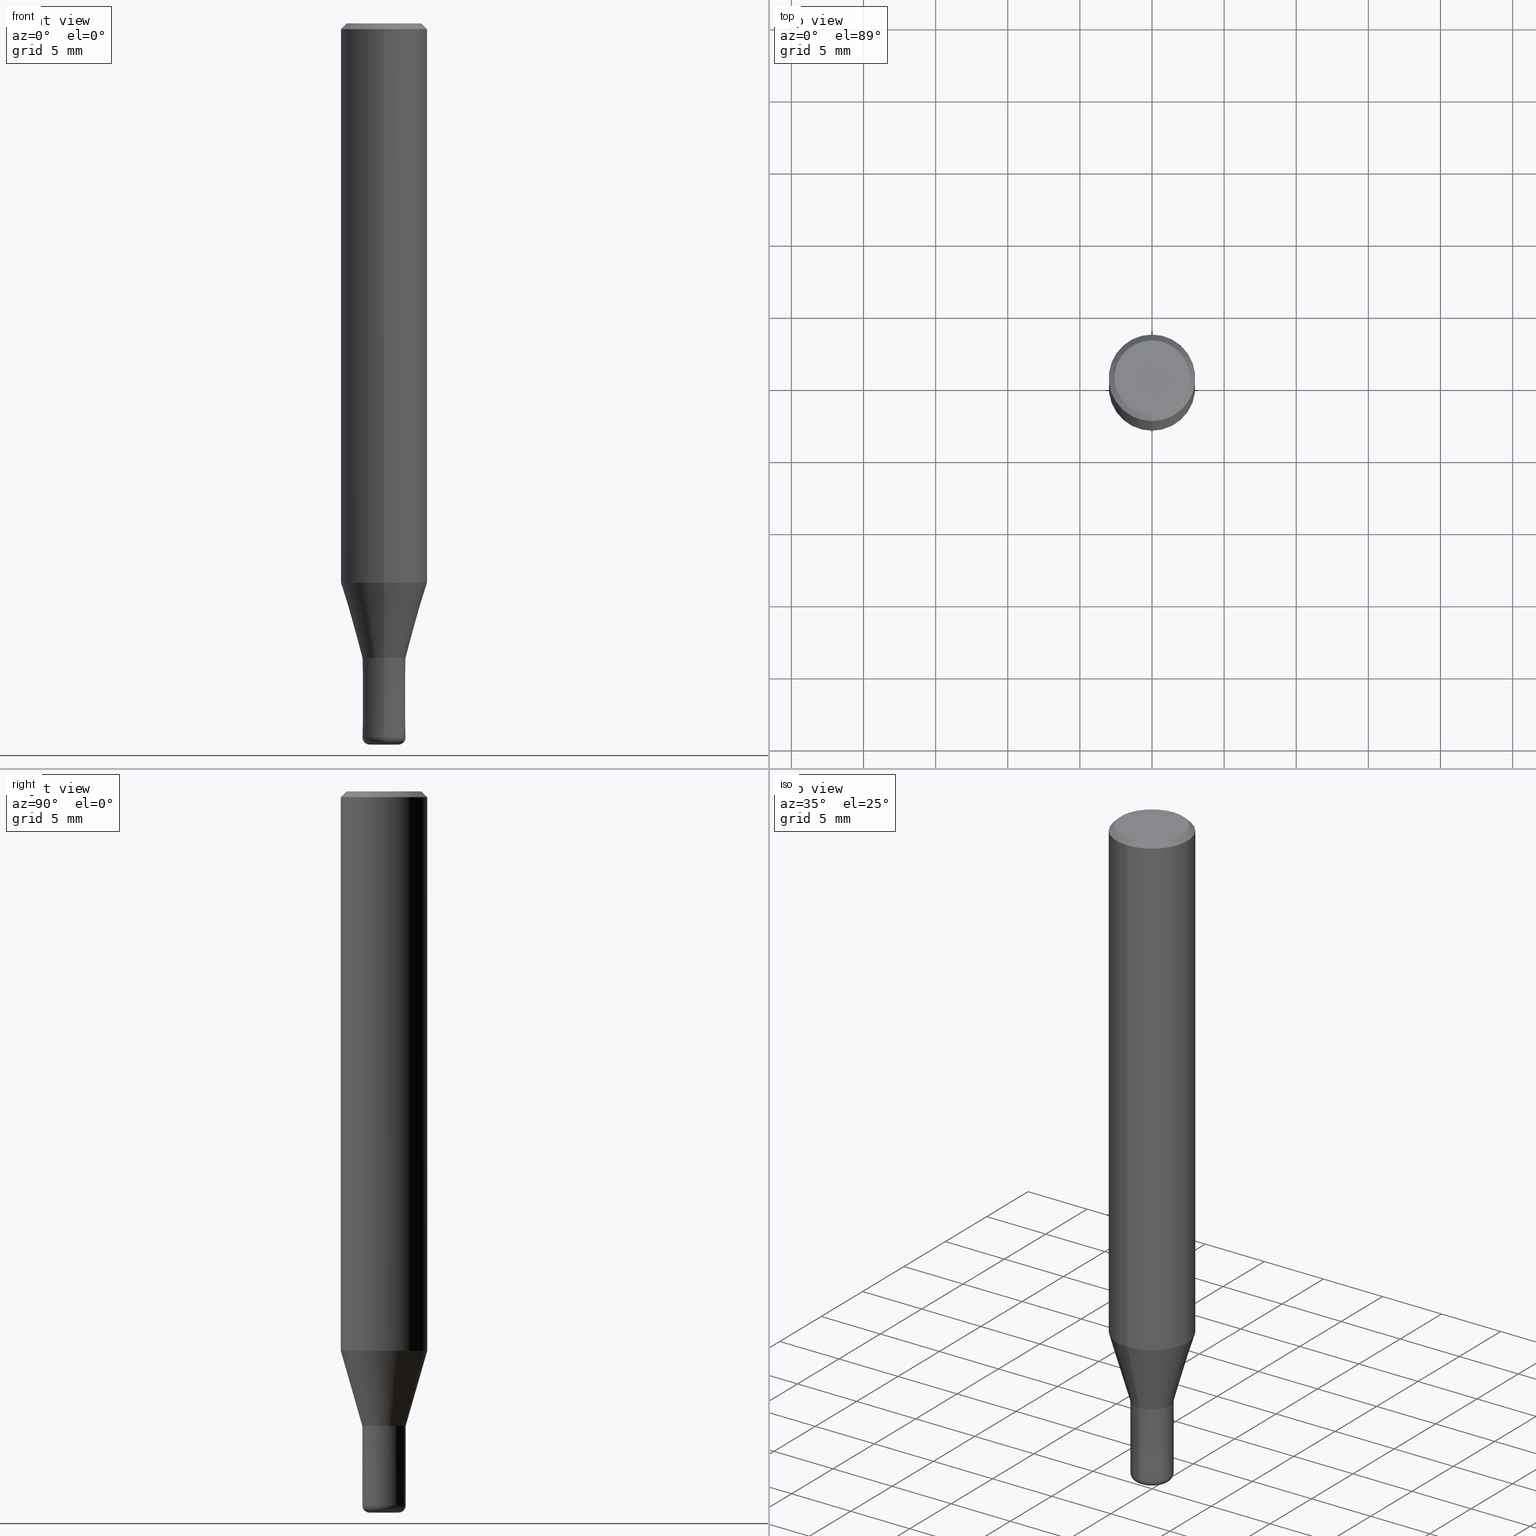
[diagram: canonical four-view strip — front | top / right | iso, engineering-drawing reading convention]
A machine part, canonical four-view strip (front | top / right | iso — engineering-drawing reading convention). The complete STEP part file that produces these views, byte-faithful:
ISO-10303-21;
HEADER;
FILE_DESCRIPTION(('no description'),'unknown implementation level');
FILE_NAME('CXRS5030-05-0600-Huellk.stp','  ',('CIMSOURCE GmbH'),('CADClick - KiM GmbH - www.kimweb.de'),'unknown preprocess','ACIS','unknown authorization');
FILE_SCHEMA(('automotive_design'));
ENDSEC;
DATA;
#1=MECHANICAL_DESIGN_GEOMETRIC_PRESENTATION_REPRESENTATION(' ',(#14,#15,#16,#17,#18,#19,#20,#21,#22,#23,#24,#25,#26,#27,#28,#29,#30,#31,#32,#33,#34,#35,#36,#37,#38,#39,#40,#41,#42,#43,#44,#45,#46,#47,#48,#49,#50,#51,#52,#53,#54,#55,#56,#57,#58,#59,#60,#61,#62,#63,#64,#65,#66,#67,#68,#69,#70,#71,#72,#73,#74,#75,#76,#77,#78,#79,#80,#81,#82,#83,#84,#85,#86,#87,#88,#89,#90,#91,#92,#93,#94,#95,#96,#97),#10);
#2=PRODUCT_DEFINITION_CONTEXT('',#98,'design');
#3=APPLICATION_PROTOCOL_DEFINITION('INTERNATIONAL STANDARD','automotive_design',1994,#98);
#4=PRODUCT_CATEGORY_RELATIONSHIP('NONE','NONE',#99,#100);
#5=SHAPE_DEFINITION_REPRESENTATION(#101,#102);
#6=PRODUCT_DEFINITION_CONTEXT('',#103,'design');
#7=APPLICATION_PROTOCOL_DEFINITION('INTERNATIONAL STANDARD','automotive_design',1994,#103);
#8=PRODUCT_CATEGORY_RELATIONSHIP('NONE','NONE',#104,#105);
#9=SHAPE_DEFINITION_REPRESENTATION(#106,#107);
#10= (GEOMETRIC_REPRESENTATION_CONTEXT(3)GLOBAL_UNCERTAINTY_ASSIGNED_CONTEXT((#110))GLOBAL_UNIT_ASSIGNED_CONTEXT((#112,#113,#114))REPRESENTATION_CONTEXT('NONE','WORKSPACE'));
#14=STYLED_ITEM('',(#116),#117);
#15=STYLED_ITEM('',(#118),#119);
#16=STYLED_ITEM('',(#120),#121);
#17=STYLED_ITEM('',(#122),#123);
#18=STYLED_ITEM('',(#124),#125);
#19=STYLED_ITEM('',(#126),#127);
#20=STYLED_ITEM('',(#128),#129);
#21=STYLED_ITEM('',(#130),#131);
#22=STYLED_ITEM('',(#132),#133);
#23=STYLED_ITEM('',(#134),#135);
#24=STYLED_ITEM('',(#136),#137);
#25=STYLED_ITEM('',(#138),#139);
#26=STYLED_ITEM('',(#140),#141);
#27=STYLED_ITEM('',(#142),#143);
#28=STYLED_ITEM('',(#144),#145);
#29=STYLED_ITEM('',(#146),#147);
#30=STYLED_ITEM('',(#148),#149);
#31=STYLED_ITEM('',(#150),#151);
#32=STYLED_ITEM('',(#152),#153);
#33=STYLED_ITEM('',(#154),#155);
#34=STYLED_ITEM('',(#156),#157);
#35=STYLED_ITEM('',(#158),#159);
#36=STYLED_ITEM('',(#160),#161);
#37=STYLED_ITEM('',(#162),#163);
#38=STYLED_ITEM('',(#164),#165);
#39=STYLED_ITEM('',(#166),#167);
#40=STYLED_ITEM('',(#168),#169);
#41=STYLED_ITEM('',(#170),#171);
#42=STYLED_ITEM('',(#172),#173);
#43=STYLED_ITEM('',(#174),#175);
#44=STYLED_ITEM('',(#176),#177);
#45=STYLED_ITEM('',(#178),#179);
#46=STYLED_ITEM('',(#180),#181);
#47=STYLED_ITEM('',(#182),#183);
#48=STYLED_ITEM('',(#184),#185);
#49=STYLED_ITEM('',(#186),#187);
#50=STYLED_ITEM('',(#188),#189);
#51=STYLED_ITEM('',(#190),#191);
#52=STYLED_ITEM('',(#192),#193);
#53=STYLED_ITEM('',(#194),#195);
#54=STYLED_ITEM('',(#196),#197);
#55=STYLED_ITEM('',(#198),#199);
#56=STYLED_ITEM('',(#200),#201);
#57=STYLED_ITEM('',(#202),#203);
#58=STYLED_ITEM('',(#204),#205);
#59=STYLED_ITEM('',(#206),#207);
#60=STYLED_ITEM('',(#208),#209);
#61=STYLED_ITEM('',(#210),#211);
#62=STYLED_ITEM('',(#212),#213);
#63=STYLED_ITEM('',(#214),#215);
#64=STYLED_ITEM('',(#216),#217);
#65=STYLED_ITEM('',(#218),#219);
#66=STYLED_ITEM('',(#220),#221);
#67=STYLED_ITEM('',(#222),#223);
#68=STYLED_ITEM('',(#224),#225);
#69=STYLED_ITEM('',(#226),#227);
#70=STYLED_ITEM('',(#228),#229);
#71=STYLED_ITEM('',(#230),#231);
#72=STYLED_ITEM('',(#232),#233);
#73=STYLED_ITEM('',(#234),#235);
#74=STYLED_ITEM('',(#236),#237);
#75=STYLED_ITEM('',(#238),#239);
#76=STYLED_ITEM('',(#240),#241);
#77=STYLED_ITEM('',(#242),#243);
#78=STYLED_ITEM('',(#244),#245);
#79=STYLED_ITEM('',(#246),#247);
#80=STYLED_ITEM('',(#248),#249);
#81=STYLED_ITEM('',(#250),#251);
#82=STYLED_ITEM('',(#252),#253);
#83=STYLED_ITEM('',(#254),#255);
#84=STYLED_ITEM('',(#256),#257);
#85=STYLED_ITEM('',(#258),#259);
#86=STYLED_ITEM('',(#260),#261);
#87=STYLED_ITEM('',(#262),#263);
#88=STYLED_ITEM('',(#264),#265);
#89=STYLED_ITEM('',(#266),#267);
#90=STYLED_ITEM('',(#268),#269);
#91=STYLED_ITEM('',(#270),#271);
#92=STYLED_ITEM('',(#272),#273);
#93=STYLED_ITEM('',(#274),#275);
#94=STYLED_ITEM('',(#276),#277);
#95=STYLED_ITEM('',(#278),#279);
#96=STYLED_ITEM('',(#280),#281);
#97=STYLED_ITEM('',(#282),#283);
#98=APPLICATION_CONTEXT(' ');
#99=PRODUCT_CATEGORY('part','NONE');
#100=PRODUCT_RELATED_PRODUCT_CATEGORY('detail',' ',(#284));
#101=PRODUCT_DEFINITION_SHAPE('NONE','NONE',#285);
#102=ADVANCED_BREP_SHAPE_REPRESENTATION('1',(#229,#286),#10);
#103=APPLICATION_CONTEXT(' ');
#104=PRODUCT_CATEGORY('part','NONE');
#105=PRODUCT_RELATED_PRODUCT_CATEGORY('detail',' ',(#287));
#106=PRODUCT_DEFINITION_SHAPE('NONE','NONE',#288);
#107=ADVANCED_BREP_SHAPE_REPRESENTATION('2',(#219,#289),#10);
#110=UNCERTAINTY_MEASURE_WITH_UNIT(LENGTH_MEASURE(1.0E-006),#112,'','');
#112= (CONVERSION_BASED_UNIT('MILLIMETRE',#292)LENGTH_UNIT()NAMED_UNIT(#295));
#113= (NAMED_UNIT(#297)PLANE_ANGLE_UNIT()SI_UNIT($,.RADIAN.));
#114= (NAMED_UNIT(#297)SOLID_ANGLE_UNIT()SI_UNIT($,.STERADIAN.));
#116=PRESENTATION_STYLE_ASSIGNMENT((#303));
#117=EDGE_CURVE('',#217,#245,#304,.T.);
#118=PRESENTATION_STYLE_ASSIGNMENT((#305));
#119=ADVANCED_FACE('',(#306),#307,.T.);
#120=PRESENTATION_STYLE_ASSIGNMENT((#308));
#121=EDGE_CURVE('',#281,#275,#309,.T.);
#122=PRESENTATION_STYLE_ASSIGNMENT((#310));
#123=VERTEX_POINT('',#311);
#124=PRESENTATION_STYLE_ASSIGNMENT((#312));
#125=ADVANCED_FACE('',(#313),#314,.T.);
#126=PRESENTATION_STYLE_ASSIGNMENT((#315));
#127=ADVANCED_FACE('',(#316),#317,.T.);
#128=PRESENTATION_STYLE_ASSIGNMENT((#318));
#129=VERTEX_POINT('',#319);
#130=PRESENTATION_STYLE_ASSIGNMENT((#320));
#131=EDGE_CURVE('',#165,#123,#321,.T.);
#132=PRESENTATION_STYLE_ASSIGNMENT((#322));
#133=EDGE_CURVE('',#123,#165,#323,.T.);
#134=PRESENTATION_STYLE_ASSIGNMENT((#324));
#135=ADVANCED_FACE('',(#325,#326),#327,.T.);
#136=PRESENTATION_STYLE_ASSIGNMENT((#328));
#137=EDGE_CURVE('',#243,#215,#329,.T.);
#138=PRESENTATION_STYLE_ASSIGNMENT((#330));
#139=EDGE_CURVE('',#195,#203,#331,.T.);
#140=PRESENTATION_STYLE_ASSIGNMENT((#332));
#141=EDGE_CURVE('',#275,#281,#333,.T.);
#142=PRESENTATION_STYLE_ASSIGNMENT((#334));
#143=EDGE_CURVE('',#213,#221,#335,.T.);
#144=PRESENTATION_STYLE_ASSIGNMENT((#336));
#145=EDGE_CURVE('',#195,#215,#337,.T.);
#146=PRESENTATION_STYLE_ASSIGNMENT((#338));
#147=EDGE_CURVE('',#197,#151,#339,.T.);
#148=PRESENTATION_STYLE_ASSIGNMENT((#340));
#149=ADVANCED_FACE('',(#341),#342,.T.);
#150=PRESENTATION_STYLE_ASSIGNMENT((#343));
#151=VERTEX_POINT('',#344);
#152=PRESENTATION_STYLE_ASSIGNMENT((#345));
#153=EDGE_CURVE('',#173,#209,#346,.T.);
#154=PRESENTATION_STYLE_ASSIGNMENT((#347));
#155=EDGE_CURVE('',#245,#217,#348,.T.);
#156=PRESENTATION_STYLE_ASSIGNMENT((#349));
#157=EDGE_CURVE('',#191,#187,#350,.T.);
#158=PRESENTATION_STYLE_ASSIGNMENT((#351));
#159=EDGE_CURVE('',#269,#129,#352,.T.);
#160=PRESENTATION_STYLE_ASSIGNMENT((#353));
#161=ADVANCED_FACE('',(#354),#355,.T.);
#162=PRESENTATION_STYLE_ASSIGNMENT((#356));
#163=ADVANCED_FACE('',(#357),#358,.T.);
#164=PRESENTATION_STYLE_ASSIGNMENT((#359));
#165=VERTEX_POINT('',#360);
#166=PRESENTATION_STYLE_ASSIGNMENT((#361));
#167=EDGE_CURVE('',#151,#123,#362,.T.);
#168=PRESENTATION_STYLE_ASSIGNMENT((#363));
#169=ADVANCED_FACE('',(#364),#365,.T.);
#170=PRESENTATION_STYLE_ASSIGNMENT((#366));
#171=VERTEX_POINT('',#367);
#172=PRESENTATION_STYLE_ASSIGNMENT((#368));
#173=VERTEX_POINT('',#369);
#174=PRESENTATION_STYLE_ASSIGNMENT((#370));
#175=EDGE_CURVE('',#255,#173,#371,.T.);
#176=PRESENTATION_STYLE_ASSIGNMENT((#372));
#177=EDGE_CURVE('',#221,#185,#373,.T.);
#178=PRESENTATION_STYLE_ASSIGNMENT((#374));
#179=EDGE_CURVE('',#245,#275,#375,.T.);
#180=PRESENTATION_STYLE_ASSIGNMENT((#376));
#181=ADVANCED_FACE('',(#377),#378,.T.);
#182=PRESENTATION_STYLE_ASSIGNMENT((#379));
#183=ADVANCED_FACE('',(#380),#381,.T.);
#184=PRESENTATION_STYLE_ASSIGNMENT((#382));
#185=VERTEX_POINT('',#383);
#186=PRESENTATION_STYLE_ASSIGNMENT((#384));
#187=VERTEX_POINT('',#385);
#188=PRESENTATION_STYLE_ASSIGNMENT((#386));
#189=ADVANCED_FACE('',(#387,#388),#389,.T.);
#190=PRESENTATION_STYLE_ASSIGNMENT((#390));
#191=VERTEX_POINT('',#391);
#192=PRESENTATION_STYLE_ASSIGNMENT((#392));
#193=ADVANCED_FACE('',(#393),#394,.F.);
#194=PRESENTATION_STYLE_ASSIGNMENT((#395));
#195=VERTEX_POINT('',#396);
#196=PRESENTATION_STYLE_ASSIGNMENT((#397));
#197=VERTEX_POINT('',#398);
#198=PRESENTATION_STYLE_ASSIGNMENT((#399));
#199=ADVANCED_FACE('',(#400,#401),#402,.T.);
#200=PRESENTATION_STYLE_ASSIGNMENT((#403));
#201=EDGE_CURVE('',#185,#171,#404,.T.);
#202=PRESENTATION_STYLE_ASSIGNMENT((#405));
#203=VERTEX_POINT('',#406);
#204=PRESENTATION_STYLE_ASSIGNMENT((#407));
#205=EDGE_CURVE('',#151,#197,#408,.T.);
#206=PRESENTATION_STYLE_ASSIGNMENT((#409));
#207=ADVANCED_FACE('',(#410),#411,.T.);
#208=PRESENTATION_STYLE_ASSIGNMENT((#412));
#209=VERTEX_POINT('',#413);
#210=PRESENTATION_STYLE_ASSIGNMENT((#414));
#211=VERTEX_POINT('',#415);
#212=PRESENTATION_STYLE_ASSIGNMENT((#416));
#213=VERTEX_POINT('',#417);
#214=PRESENTATION_STYLE_ASSIGNMENT((#418));
#215=VERTEX_POINT('',#419);
#216=PRESENTATION_STYLE_ASSIGNMENT((#420));
#217=VERTEX_POINT('',#421);
#218=PRESENTATION_STYLE_ASSIGNMENT((#422));
#219=MANIFOLD_SOLID_BREP('2',#423);
#220=PRESENTATION_STYLE_ASSIGNMENT((#424));
#221=VERTEX_POINT('',#425);
#222=PRESENTATION_STYLE_ASSIGNMENT((#426));
#223=EDGE_CURVE('',#281,#217,#427,.T.);
#224=PRESENTATION_STYLE_ASSIGNMENT((#428));
#225=EDGE_CURVE('',#221,#213,#429,.T.);
#226=PRESENTATION_STYLE_ASSIGNMENT((#430));
#227=EDGE_CURVE('',#209,#211,#431,.T.);
#228=PRESENTATION_STYLE_ASSIGNMENT((#432));
#229=MANIFOLD_SOLID_BREP('1',#433);
#230=PRESENTATION_STYLE_ASSIGNMENT((#434));
#231=EDGE_CURVE('',#211,#255,#435,.T.);
#232=PRESENTATION_STYLE_ASSIGNMENT((#436));
#233=ADVANCED_FACE('',(#437),#438,.T.);
#234=PRESENTATION_STYLE_ASSIGNMENT((#439));
#235=ADVANCED_FACE('',(#440),#441,.F.);
#236=PRESENTATION_STYLE_ASSIGNMENT((#442));
#237=ADVANCED_FACE('',(#443),#444,.T.);
#238=PRESENTATION_STYLE_ASSIGNMENT((#445));
#239=ADVANCED_FACE('',(#446,#447),#448,.T.);
#240=PRESENTATION_STYLE_ASSIGNMENT((#449));
#241=ADVANCED_FACE('',(#450),#451,.T.);
#242=PRESENTATION_STYLE_ASSIGNMENT((#452));
#243=VERTEX_POINT('',#453);
#244=PRESENTATION_STYLE_ASSIGNMENT((#454));
#245=VERTEX_POINT('',#455);
#246=PRESENTATION_STYLE_ASSIGNMENT((#456));
#247=EDGE_CURVE('',#129,#269,#457,.T.);
#248=PRESENTATION_STYLE_ASSIGNMENT((#458));
#249=ADVANCED_FACE('',(#459),#460,.T.);
#250=PRESENTATION_STYLE_ASSIGNMENT((#461));
#251=EDGE_CURVE('',#215,#243,#462,.T.);
#252=PRESENTATION_STYLE_ASSIGNMENT((#463));
#253=EDGE_CURVE('',#191,#171,#464,.T.);
#254=PRESENTATION_STYLE_ASSIGNMENT((#465));
#255=VERTEX_POINT('',#466);
#256=PRESENTATION_STYLE_ASSIGNMENT((#467));
#257=EDGE_CURVE('',#171,#213,#468,.T.);
#258=PRESENTATION_STYLE_ASSIGNMENT((#469));
#259=EDGE_CURVE('',#211,#209,#470,.T.);
#260=PRESENTATION_STYLE_ASSIGNMENT((#471));
#261=EDGE_CURVE('',#203,#195,#472,.T.);
#262=PRESENTATION_STYLE_ASSIGNMENT((#473));
#263=EDGE_CURVE('',#129,#123,#474,.T.);
#264=PRESENTATION_STYLE_ASSIGNMENT((#475));
#265=EDGE_CURVE('',#243,#203,#476,.T.);
#266=PRESENTATION_STYLE_ASSIGNMENT((#477));
#267=EDGE_CURVE('',#173,#255,#478,.T.);
#268=PRESENTATION_STYLE_ASSIGNMENT((#479));
#269=VERTEX_POINT('',#480);
#270=PRESENTATION_STYLE_ASSIGNMENT((#481));
#271=EDGE_CURVE('',#165,#197,#482,.T.);
#272=PRESENTATION_STYLE_ASSIGNMENT((#483));
#273=EDGE_CURVE('',#171,#185,#484,.T.);
#274=PRESENTATION_STYLE_ASSIGNMENT((#485));
#275=VERTEX_POINT('',#486);
#276=PRESENTATION_STYLE_ASSIGNMENT((#487));
#277=EDGE_CURVE('',#185,#187,#488,.T.);
#278=PRESENTATION_STYLE_ASSIGNMENT((#489));
#279=EDGE_CURVE('',#187,#191,#490,.T.);
#280=PRESENTATION_STYLE_ASSIGNMENT((#491));
#281=VERTEX_POINT('',#492);
#282=PRESENTATION_STYLE_ASSIGNMENT((#493));
#283=EDGE_CURVE('',#165,#269,#494,.T.);
#284=PRODUCT('1','1','PART-1-DESC',(#495));
#285=PRODUCT_DEFINITION('NONE','NONE',#496,#2);
#286=AXIS2_PLACEMENT_3D('',#497,#498,#499);
#287=PRODUCT('2','2','PART-2-DESC',(#500));
#288=PRODUCT_DEFINITION('NONE','NONE',#501,#6);
#289=AXIS2_PLACEMENT_3D('',#502,#503,#504);
#292=LENGTH_MEASURE_WITH_UNIT(LENGTH_MEASURE(1.0),#505);
#295=DIMENSIONAL_EXPONENTS(1.0,0.0,0.0,0.0,0.0,0.0,0.0);
#297=DIMENSIONAL_EXPONENTS(0.0,0.0,0.0,0.0,0.0,0.0,0.0);
#303=CURVE_STYLE('',#506,POSITIVE_LENGTH_MEASURE(1.0E-006),#507);
#304=CIRCLE('',#508,2.99995);
#305=SURFACE_STYLE_USAGE(.BOTH.,#509);
#306=FACE_OUTER_BOUND('',#510,.T.);
#307=CYLINDRICAL_SURFACE('',#511,3.0);
#308=CURVE_STYLE('',#512,POSITIVE_LENGTH_MEASURE(1.0E-006),#513);
#309=CIRCLE('',#514,1.49995);
#310=POINT_STYLE(' ',#515,POSITIVE_LENGTH_MEASURE(1.0E-006),#516);
#311=CARTESIAN_POINT('',(0.0,1.5,-49.5));
#312=SURFACE_STYLE_USAGE(.BOTH.,#517);
#313=FACE_OUTER_BOUND('',#518,.T.);
#314=CONICAL_SURFACE('',#519,2.8,0.78539816339745);
#315=SURFACE_STYLE_USAGE(.BOTH.,#520);
#316=FACE_OUTER_BOUND('',#521,.T.);
#317=PLANE('',#522);
#318=POINT_STYLE(' ',#523,POSITIVE_LENGTH_MEASURE(1.0E-006),#524);
#319=CARTESIAN_POINT('',(0.0,1.0,-50.0));
#320=CURVE_STYLE('',#525,POSITIVE_LENGTH_MEASURE(1.0E-006),#526);
#321=CIRCLE('',#527,1.5);
#322=CURVE_STYLE('',#528,POSITIVE_LENGTH_MEASURE(1.0E-006),#529);
#323=CIRCLE('',#530,1.5);
#324=SURFACE_STYLE_USAGE(.BOTH.,#531);
#325=FACE_OUTER_BOUND('',#532,.T.);
#326=FACE_BOUND('',#533,.T.);
#327=PLANE('',#534);
#328=CURVE_STYLE('',#535,POSITIVE_LENGTH_MEASURE(1.0E-006),#536);
#329=CIRCLE('',#537,0.675);
#330=CURVE_STYLE('',#538,POSITIVE_LENGTH_MEASURE(1.0E-006),#539);
#331=CIRCLE('',#540,0.675);
#332=CURVE_STYLE('',#541,POSITIVE_LENGTH_MEASURE(1.0E-006),#542);
#333=CIRCLE('',#543,1.49995);
#334=CURVE_STYLE('',#544,POSITIVE_LENGTH_MEASURE(1.0E-006),#545);
#335=CIRCLE('',#546,2.6);
#336=CURVE_STYLE('',#547,POSITIVE_LENGTH_MEASURE(1.0E-006),#548);
#337=LINE('',#549,#550);
#338=CURVE_STYLE('',#551,POSITIVE_LENGTH_MEASURE(1.0E-006),#552);
#339=CIRCLE('',#553,1.4999);
#340=SURFACE_STYLE_USAGE(.BOTH.,#554);
#341=FACE_OUTER_BOUND('',#555,.T.);
#342=CYLINDRICAL_SURFACE('',#556,0.675);
#343=POINT_STYLE(' ',#557,POSITIVE_LENGTH_MEASURE(1.0E-006),#558);
#344=CARTESIAN_POINT('',(0.0,1.4999,-44.0));
#345=CURVE_STYLE('',#559,POSITIVE_LENGTH_MEASURE(1.0E-006),#560);
#346=LINE('',#561,#562);
#347=CURVE_STYLE('',#563,POSITIVE_LENGTH_MEASURE(1.0E-006),#564);
#348=CIRCLE('',#565,2.99995);
#349=CURVE_STYLE('',#566,POSITIVE_LENGTH_MEASURE(1.0E-006),#567);
#350=CIRCLE('',#568,3.0);
#351=CURVE_STYLE('',#569,POSITIVE_LENGTH_MEASURE(1.0E-006),#570);
#352=CIRCLE('',#571,1.0);
#353=SURFACE_STYLE_USAGE(.BOTH.,#572);
#354=FACE_OUTER_BOUND('',#573,.T.);
#355=CYLINDRICAL_SURFACE('',#574,3.0);
#356=SURFACE_STYLE_USAGE(.BOTH.,#575);
#357=FACE_OUTER_BOUND('',#576,.T.);
#358=TOROIDAL_SURFACE('',#577,0.999999999999999,0.500000000000001);
#359=POINT_STYLE(' ',#578,POSITIVE_LENGTH_MEASURE(1.0E-006),#579);
#360=CARTESIAN_POINT('',(1.83690953073357E-016,-1.5,-49.5));
#361=CURVE_STYLE('',#580,POSITIVE_LENGTH_MEASURE(1.0E-006),#581);
#362=LINE('',#582,#583);
#363=SURFACE_STYLE_USAGE(.BOTH.,#584);
#364=FACE_OUTER_BOUND('',#585,.T.);
#365=TOROIDAL_SURFACE('',#586,0.999999999999999,0.500000000000001);
#366=POINT_STYLE(' ',#587,POSITIVE_LENGTH_MEASURE(1.0E-006),#588);
#367=CARTESIAN_POINT('',(3.67381906146713E-016,-3.0,-0.399999999999999));
#368=POINT_STYLE(' ',#589,POSITIVE_LENGTH_MEASURE(1.0E-006),#590);
#369=CARTESIAN_POINT('',(8.26609288830105E-017,-0.675,-49.9));
#370=CURVE_STYLE('',#591,POSITIVE_LENGTH_MEASURE(1.0E-006),#592);
#371=CIRCLE('',#593,0.675);
#372=CURVE_STYLE('',#594,POSITIVE_LENGTH_MEASURE(1.0E-006),#595);
#373=LINE('',#596,#597);
#374=CURVE_STYLE('',#598,POSITIVE_LENGTH_MEASURE(1.0E-006),#599);
#375=LINE('',#600,#601);
#376=SURFACE_STYLE_USAGE(.BOTH.,#602);
#377=FACE_OUTER_BOUND('',#603,.T.);
#378=CONICAL_SURFACE('',#604,2.8,0.78539816339745);
#379=SURFACE_STYLE_USAGE(.BOTH.,#605);
#380=FACE_OUTER_BOUND('',#606,.T.);
#381=CYLINDRICAL_SURFACE('',#607,0.675);
#382=POINT_STYLE(' ',#608,POSITIVE_LENGTH_MEASURE(1.0E-006),#609);
#383=CARTESIAN_POINT('',(0.0,3.0,-0.399999999999999));
#384=POINT_STYLE(' ',#610,POSITIVE_LENGTH_MEASURE(1.0E-006),#611);
#385=CARTESIAN_POINT('',(0.0,3.0,-38.769));
#386=SURFACE_STYLE_USAGE(.BOTH.,#612);
#387=FACE_BOUND('',#613,.T.);
#388=FACE_OUTER_BOUND('',#614,.T.);
#389=PLANE('',#615);
#390=POINT_STYLE(' ',#616,POSITIVE_LENGTH_MEASURE(1.0E-006),#617);
#391=CARTESIAN_POINT('',(3.67381906146713E-016,-3.0,-38.769));
#392=SURFACE_STYLE_USAGE(.BOTH.,#618);
#393=FACE_OUTER_BOUND('',#619,.T.);
#394=CYLINDRICAL_SURFACE('',#620,0.675);
#395=POINT_STYLE(' ',#621,POSITIVE_LENGTH_MEASURE(1.0E-006),#622);
#396=CARTESIAN_POINT('',(0.0,0.675,-44.0));
#397=POINT_STYLE(' ',#623,POSITIVE_LENGTH_MEASURE(1.0E-006),#624);
#398=CARTESIAN_POINT('',(1.83678707009818E-016,-1.4999,-44.0));
#399=SURFACE_STYLE_USAGE(.BOTH.,#625);
#400=FACE_BOUND('',#626,.T.);
#401=FACE_OUTER_BOUND('',#627,.T.);
#402=PLANE('',#628);
#403=CURVE_STYLE('',#629,POSITIVE_LENGTH_MEASURE(1.0E-006),#630);
#404=CIRCLE('',#631,3.0);
#405=POINT_STYLE(' ',#632,POSITIVE_LENGTH_MEASURE(1.0E-006),#633);
#406=CARTESIAN_POINT('',(8.26609288830105E-017,-0.675,-44.0));
#407=CURVE_STYLE('',#634,POSITIVE_LENGTH_MEASURE(1.0E-006),#635);
#408=CIRCLE('',#636,1.4999);
#409=SURFACE_STYLE_USAGE(.BOTH.,#637);
#410=FACE_OUTER_BOUND('',#638,.T.);
#411=CONICAL_SURFACE('',#639,2.24995,0.279258842899557);
#412=POINT_STYLE(' ',#640,POSITIVE_LENGTH_MEASURE(1.0E-006),#641);
#413=CARTESIAN_POINT('',(8.26609288830105E-017,-0.675,-44.0));
#414=POINT_STYLE(' ',#642,POSITIVE_LENGTH_MEASURE(1.0E-006),#643);
#415=CARTESIAN_POINT('',(0.0,0.675,-44.0));
#416=POINT_STYLE(' ',#644,POSITIVE_LENGTH_MEASURE(1.0E-006),#645);
#417=CARTESIAN_POINT('',(3.18397651993818E-016,-2.6,0.0));
#418=POINT_STYLE(' ',#646,POSITIVE_LENGTH_MEASURE(1.0E-006),#647);
#419=CARTESIAN_POINT('',(0.0,0.675,-50.0));
#420=POINT_STYLE(' ',#648,POSITIVE_LENGTH_MEASURE(1.0E-006),#649);
#421=CARTESIAN_POINT('',(3.67375783114944E-016,-2.99995,-38.769));
#422=SURFACE_STYLE_USAGE(.BOTH.,#650);
#423=CLOSED_SHELL('',(#235,#163,#237,#239,#241,#169,#199,#193));
#424=POINT_STYLE(' ',#651,POSITIVE_LENGTH_MEASURE(1.0E-006),#652);
#425=CARTESIAN_POINT('',(0.0,2.6,0.0));
#426=CURVE_STYLE('',#653,POSITIVE_LENGTH_MEASURE(1.0E-006),#654);
#427=LINE('',#655,#656);
#428=CURVE_STYLE('',#657,POSITIVE_LENGTH_MEASURE(1.0E-006),#658);
#429=CIRCLE('',#659,2.6);
#430=CURVE_STYLE('',#660,POSITIVE_LENGTH_MEASURE(1.0E-006),#661);
#431=CIRCLE('',#662,0.675);
#432=SURFACE_STYLE_USAGE(.BOTH.,#663);
#433=CLOSED_SHELL('',(#183,#207,#161,#181,#135,#233,#125,#119,#249,#189,#149,#127));
#434=CURVE_STYLE('',#664,POSITIVE_LENGTH_MEASURE(1.0E-006),#665);
#435=LINE('',#666,#667);
#436=SURFACE_STYLE_USAGE(.BOTH.,#668);
#437=FACE_OUTER_BOUND('',#669,.T.);
#438=PLANE('',#670);
#439=SURFACE_STYLE_USAGE(.BOTH.,#671);
#440=FACE_OUTER_BOUND('',#672,.T.);
#441=CYLINDRICAL_SURFACE('',#673,0.675);
#442=SURFACE_STYLE_USAGE(.BOTH.,#674);
#443=FACE_OUTER_BOUND('',#675,.T.);
#444=CONICAL_SURFACE('',#676,1.49995,1.81818181798127E-005);
#445=SURFACE_STYLE_USAGE(.BOTH.,#677);
#446=FACE_OUTER_BOUND('',#678,.T.);
#447=FACE_BOUND('',#679,.T.);
#448=PLANE('',#680);
#449=SURFACE_STYLE_USAGE(.BOTH.,#681);
#450=FACE_OUTER_BOUND('',#682,.T.);
#451=CONICAL_SURFACE('',#683,1.49995,1.81818181798127E-005);
#452=POINT_STYLE(' ',#684,POSITIVE_LENGTH_MEASURE(1.0E-006),#685);
#453=CARTESIAN_POINT('',(8.26609288830105E-017,-0.675,-50.0));
#454=POINT_STYLE(' ',#686,POSITIVE_LENGTH_MEASURE(1.0E-006),#687);
#455=CARTESIAN_POINT('',(0.0,2.99995,-38.769));
#456=CURVE_STYLE('',#688,POSITIVE_LENGTH_MEASURE(1.0E-006),#689);
#457=CIRCLE('',#690,1.0);
#458=SURFACE_STYLE_USAGE(.BOTH.,#691);
#459=FACE_OUTER_BOUND('',#692,.T.);
#460=CONICAL_SURFACE('',#693,2.24995,0.279258842899557);
#461=CURVE_STYLE('',#694,POSITIVE_LENGTH_MEASURE(1.0E-006),#695);
#462=CIRCLE('',#696,0.675);
#463=CURVE_STYLE('',#697,POSITIVE_LENGTH_MEASURE(1.0E-006),#698);
#464=LINE('',#699,#700);
#465=POINT_STYLE(' ',#701,POSITIVE_LENGTH_MEASURE(1.0E-006),#702);
#466=CARTESIAN_POINT('',(0.0,0.675,-49.9));
#467=CURVE_STYLE('',#703,POSITIVE_LENGTH_MEASURE(1.0E-006),#704);
#468=LINE('',#705,#706);
#469=CURVE_STYLE('',#707,POSITIVE_LENGTH_MEASURE(1.0E-006),#708);
#470=CIRCLE('',#709,0.675);
#471=CURVE_STYLE('',#710,POSITIVE_LENGTH_MEASURE(1.0E-006),#711);
#472=CIRCLE('',#712,0.675);
#473=CURVE_STYLE('',#713,POSITIVE_LENGTH_MEASURE(1.0E-006),#714);
#474=CIRCLE('',#715,0.500000000000001);
#475=CURVE_STYLE('',#716,POSITIVE_LENGTH_MEASURE(1.0E-006),#717);
#476=LINE('',#718,#719);
#477=CURVE_STYLE('',#720,POSITIVE_LENGTH_MEASURE(1.0E-006),#721);
#478=CIRCLE('',#722,0.675);
#479=POINT_STYLE(' ',#723,POSITIVE_LENGTH_MEASURE(1.0E-006),#724);
#480=CARTESIAN_POINT('',(1.22460635382238E-016,-1.0,-50.0));
#481=CURVE_STYLE('',#725,POSITIVE_LENGTH_MEASURE(1.0E-006),#726);
#482=LINE('',#727,#728);
#483=CURVE_STYLE('',#729,POSITIVE_LENGTH_MEASURE(1.0E-006),#730);
#484=CIRCLE('',#731,3.0);
#485=POINT_STYLE(' ',#732,POSITIVE_LENGTH_MEASURE(1.0E-006),#733);
#486=CARTESIAN_POINT('',(0.0,1.49995,-44.0));
#487=CURVE_STYLE('',#734,POSITIVE_LENGTH_MEASURE(1.0E-006),#735);
#488=LINE('',#736,#737);
#489=CURVE_STYLE('',#738,POSITIVE_LENGTH_MEASURE(1.0E-006),#739);
#490=CIRCLE('',#740,3.0);
#491=POINT_STYLE(' ',#741,POSITIVE_LENGTH_MEASURE(1.0E-006),#742);
#492=CARTESIAN_POINT('',(1.83684830041587E-016,-1.49995,-44.0));
#493=CURVE_STYLE('',#743,POSITIVE_LENGTH_MEASURE(1.0E-006),#744);
#494=CIRCLE('',#745,0.500000000000001);
#495=PRODUCT_CONTEXT('',#98,'mechanical');
#496=PRODUCT_DEFINITION_FORMATION_WITH_SPECIFIED_SOURCE(' ','NONE',#284,.NOT_KNOWN.);
#497=CARTESIAN_POINT('',(0.0,0.0,0.0));
#498=DIRECTION('',(0.0,0.0,1.0));
#499=DIRECTION('',(1.0,0.0,0.0));
#500=PRODUCT_CONTEXT('',#103,'mechanical');
#501=PRODUCT_DEFINITION_FORMATION_WITH_SPECIFIED_SOURCE(' ','NONE',#287,.NOT_KNOWN.);
#502=CARTESIAN_POINT('',(0.0,0.0,0.0));
#503=DIRECTION('',(0.0,0.0,1.0));
#504=DIRECTION('',(1.0,0.0,0.0));
#505= (NAMED_UNIT(#295)LENGTH_UNIT()SI_UNIT(.MILLI.,.METRE.));
#506=DRAUGHTING_PRE_DEFINED_CURVE_FONT('continuous');
#507=COLOUR_RGB('',0.498039215803146,0.498039215803146,0.498039215803146);
#508=AXIS2_PLACEMENT_3D('',#747,#748,#749);
#509=SURFACE_SIDE_STYLE('',(#750));
#510=EDGE_LOOP('',(#751,#752,#753,#754));
#511=AXIS2_PLACEMENT_3D('',#755,#756,#757);
#512=DRAUGHTING_PRE_DEFINED_CURVE_FONT('continuous');
#513=COLOUR_RGB('',0.498039215803146,0.498039215803146,0.498039215803146);
#514=AXIS2_PLACEMENT_3D('',#758,#759,#760);
#515=PRE_DEFINED_MARKER('');
#516=COLOUR_RGB('',0.800000011920929,0.800000011920929,0.800000011920929);
#517=SURFACE_SIDE_STYLE('',(#761));
#518=EDGE_LOOP('',(#762,#763,#764,#765));
#519=AXIS2_PLACEMENT_3D('',#766,#767,#768);
#520=SURFACE_SIDE_STYLE('',(#769));
#521=EDGE_LOOP('',(#770,#771));
#522=AXIS2_PLACEMENT_3D('',#772,#773,#774);
#523=PRE_DEFINED_MARKER('');
#524=COLOUR_RGB('',0.800000011920929,0.800000011920929,0.800000011920929);
#525=DRAUGHTING_PRE_DEFINED_CURVE_FONT('continuous');
#526=COLOUR_RGB('',0.800000011920929,0.800000011920929,0.800000011920929);
#527=AXIS2_PLACEMENT_3D('',#775,#776,#777);
#528=DRAUGHTING_PRE_DEFINED_CURVE_FONT('continuous');
#529=COLOUR_RGB('',0.800000011920929,0.800000011920929,0.800000011920929);
#530=AXIS2_PLACEMENT_3D('',#778,#779,#780);
#531=SURFACE_SIDE_STYLE('',(#781));
#532=EDGE_LOOP('',(#782,#783));
#533=EDGE_LOOP('',(#784,#785));
#534=AXIS2_PLACEMENT_3D('',#786,#787,#788);
#535=DRAUGHTING_PRE_DEFINED_CURVE_FONT('continuous');
#536=COLOUR_RGB('',0.800000011920929,0.800000011920929,0.800000011920929);
#537=AXIS2_PLACEMENT_3D('',#789,#790,#791);
#538=DRAUGHTING_PRE_DEFINED_CURVE_FONT('continuous');
#539=COLOUR_RGB('',0.800000011920929,0.800000011920929,0.800000011920929);
#540=AXIS2_PLACEMENT_3D('',#792,#793,#794);
#541=DRAUGHTING_PRE_DEFINED_CURVE_FONT('continuous');
#542=COLOUR_RGB('',0.498039215803146,0.498039215803146,0.498039215803146);
#543=AXIS2_PLACEMENT_3D('',#795,#796,#797);
#544=DRAUGHTING_PRE_DEFINED_CURVE_FONT('continuous');
#545=COLOUR_RGB('',0.498039215803146,0.498039215803146,0.498039215803146);
#546=AXIS2_PLACEMENT_3D('',#798,#799,#800);
#547=DRAUGHTING_PRE_DEFINED_CURVE_FONT('continuous');
#548=COLOUR_RGB('',0.800000011920929,0.800000011920929,0.800000011920929);
#549=CARTESIAN_POINT('',(-8.26609288830105E-017,0.675,-47.0));
#550=VECTOR('',#801,1.0);
#551=DRAUGHTING_PRE_DEFINED_CURVE_FONT('continuous');
#552=COLOUR_RGB('',0.800000011920929,0.800000011920929,0.800000011920929);
#553=AXIS2_PLACEMENT_3D('',#802,#803,#804);
#554=SURFACE_SIDE_STYLE('',(#805));
#555=EDGE_LOOP('',(#806,#807,#808,#809));
#556=AXIS2_PLACEMENT_3D('',#810,#811,#812);
#557=PRE_DEFINED_MARKER('');
#558=COLOUR_RGB('',0.800000011920929,0.800000011920929,0.800000011920929);
#559=DRAUGHTING_PRE_DEFINED_CURVE_FONT('continuous');
#560=COLOUR_RGB('',0.498039215803146,0.498039215803146,0.498039215803146);
#561=CARTESIAN_POINT('',(8.26609288830105E-017,-0.675,-46.95));
#562=VECTOR('',#813,1.0);
#563=DRAUGHTING_PRE_DEFINED_CURVE_FONT('continuous');
#564=COLOUR_RGB('',0.498039215803146,0.498039215803146,0.498039215803146);
#565=AXIS2_PLACEMENT_3D('',#814,#815,#816);
#566=DRAUGHTING_PRE_DEFINED_CURVE_FONT('continuous');
#567=COLOUR_RGB('',0.498039215803146,0.498039215803146,0.498039215803146);
#568=AXIS2_PLACEMENT_3D('',#817,#818,#819);
#569=DRAUGHTING_PRE_DEFINED_CURVE_FONT('continuous');
#570=COLOUR_RGB('',0.800000011920929,0.800000011920929,0.800000011920929);
#571=AXIS2_PLACEMENT_3D('',#820,#821,#822);
#572=SURFACE_SIDE_STYLE('',(#823));
#573=EDGE_LOOP('',(#824,#825,#826,#827));
#574=AXIS2_PLACEMENT_3D('',#828,#829,#830);
#575=SURFACE_SIDE_STYLE('',(#831));
#576=EDGE_LOOP('',(#832,#833,#834,#835));
#577=AXIS2_PLACEMENT_3D('',#836,#837,#838);
#578=PRE_DEFINED_MARKER('');
#579=COLOUR_RGB('',0.800000011920929,0.800000011920929,0.800000011920929);
#580=DRAUGHTING_PRE_DEFINED_CURVE_FONT('continuous');
#581=COLOUR_RGB('',0.800000011920929,0.800000011920929,0.800000011920929);
#582=CARTESIAN_POINT('',(-1.83684830041587E-016,1.49995,-46.75));
#583=VECTOR('',#839,1.0);
#584=SURFACE_SIDE_STYLE('',(#840));
#585=EDGE_LOOP('',(#841,#842,#843,#844));
#586=AXIS2_PLACEMENT_3D('',#845,#846,#847);
#587=PRE_DEFINED_MARKER('');
#588=COLOUR_RGB('',0.498039215803146,0.498039215803146,0.498039215803146);
#589=PRE_DEFINED_MARKER('');
#590=COLOUR_RGB('',0.498039215803146,0.498039215803146,0.498039215803146);
#591=DRAUGHTING_PRE_DEFINED_CURVE_FONT('continuous');
#592=COLOUR_RGB('',0.498039215803146,0.498039215803146,0.498039215803146);
#593=AXIS2_PLACEMENT_3D('',#848,#849,#850);
#594=DRAUGHTING_PRE_DEFINED_CURVE_FONT('continuous');
#595=COLOUR_RGB('',0.498039215803146,0.498039215803146,0.498039215803146);
#596=CARTESIAN_POINT('',(-3.42889779070266E-016,2.8,-0.199999999999996));
#597=VECTOR('',#851,1.0);
#598=DRAUGHTING_PRE_DEFINED_CURVE_FONT('continuous');
#599=COLOUR_RGB('',0.498039215803146,0.498039215803146,0.498039215803146);
#600=CARTESIAN_POINT('',(-2.75530306578266E-016,2.24995,-41.3845));
#601=VECTOR('',#852,1.0);
#602=SURFACE_SIDE_STYLE('',(#853));
#603=EDGE_LOOP('',(#854,#855,#856,#857));
#604=AXIS2_PLACEMENT_3D('',#858,#859,#860);
#605=SURFACE_SIDE_STYLE('',(#861));
#606=EDGE_LOOP('',(#862,#863,#864,#865));
#607=AXIS2_PLACEMENT_3D('',#866,#867,#868);
#608=PRE_DEFINED_MARKER('');
#609=COLOUR_RGB('',0.498039215803146,0.498039215803146,0.498039215803146);
#610=PRE_DEFINED_MARKER('');
#611=COLOUR_RGB('',0.498039215803146,0.498039215803146,0.498039215803146);
#612=SURFACE_SIDE_STYLE('',(#869));
#613=EDGE_LOOP('',(#870,#871));
#614=EDGE_LOOP('',(#872,#873));
#615=AXIS2_PLACEMENT_3D('',#874,#875,#876);
#616=PRE_DEFINED_MARKER('');
#617=COLOUR_RGB('',0.498039215803146,0.498039215803146,0.498039215803146);
#618=SURFACE_SIDE_STYLE('',(#877));
#619=EDGE_LOOP('',(#878,#879,#880,#881));
#620=AXIS2_PLACEMENT_3D('',#882,#883,#884);
#621=PRE_DEFINED_MARKER('');
#622=COLOUR_RGB('',0.800000011920929,0.800000011920929,0.800000011920929);
#623=PRE_DEFINED_MARKER('');
#624=COLOUR_RGB('',0.800000011920929,0.800000011920929,0.800000011920929);
#625=SURFACE_SIDE_STYLE('',(#885));
#626=EDGE_LOOP('',(#886,#887));
#627=EDGE_LOOP('',(#888,#889));
#628=AXIS2_PLACEMENT_3D('',#890,#891,#892);
#629=DRAUGHTING_PRE_DEFINED_CURVE_FONT('continuous');
#630=COLOUR_RGB('',0.498039215803146,0.498039215803146,0.498039215803146);
#631=AXIS2_PLACEMENT_3D('',#893,#894,#895);
#632=PRE_DEFINED_MARKER('');
#633=COLOUR_RGB('',0.800000011920929,0.800000011920929,0.800000011920929);
#634=DRAUGHTING_PRE_DEFINED_CURVE_FONT('continuous');
#635=COLOUR_RGB('',0.800000011920929,0.800000011920929,0.800000011920929);
#636=AXIS2_PLACEMENT_3D('',#896,#897,#898);
#637=SURFACE_SIDE_STYLE('',(#899));
#638=EDGE_LOOP('',(#900,#901,#902,#903));
#639=AXIS2_PLACEMENT_3D('',#904,#905,#906);
#640=PRE_DEFINED_MARKER('');
#641=COLOUR_RGB('',0.498039215803146,0.498039215803146,0.498039215803146);
#642=PRE_DEFINED_MARKER('');
#643=COLOUR_RGB('',0.498039215803146,0.498039215803146,0.498039215803146);
#644=PRE_DEFINED_MARKER('');
#645=COLOUR_RGB('',0.498039215803146,0.498039215803146,0.498039215803146);
#646=PRE_DEFINED_MARKER('');
#647=COLOUR_RGB('',0.800000011920929,0.800000011920929,0.800000011920929);
#648=PRE_DEFINED_MARKER('');
#649=COLOUR_RGB('',0.498039215803146,0.498039215803146,0.498039215803146);
#650=SURFACE_SIDE_STYLE('',(#907));
#651=PRE_DEFINED_MARKER('');
#652=COLOUR_RGB('',0.498039215803146,0.498039215803146,0.498039215803146);
#653=DRAUGHTING_PRE_DEFINED_CURVE_FONT('continuous');
#654=COLOUR_RGB('',0.498039215803146,0.498039215803146,0.498039215803146);
#655=CARTESIAN_POINT('',(2.75530306578266E-016,-2.24995,-41.3845));
#656=VECTOR('',#908,1.0);
#657=DRAUGHTING_PRE_DEFINED_CURVE_FONT('continuous');
#658=COLOUR_RGB('',0.498039215803146,0.498039215803146,0.498039215803146);
#659=AXIS2_PLACEMENT_3D('',#909,#910,#911);
#660=DRAUGHTING_PRE_DEFINED_CURVE_FONT('continuous');
#661=COLOUR_RGB('',0.498039215803146,0.498039215803146,0.498039215803146);
#662=AXIS2_PLACEMENT_3D('',#912,#913,#914);
#663=SURFACE_SIDE_STYLE('',(#915));
#664=DRAUGHTING_PRE_DEFINED_CURVE_FONT('continuous');
#665=COLOUR_RGB('',0.498039215803146,0.498039215803146,0.498039215803146);
#666=CARTESIAN_POINT('',(-8.26609288830105E-017,0.675,-46.95));
#667=VECTOR('',#916,1.0);
#668=SURFACE_SIDE_STYLE('',(#917));
#669=EDGE_LOOP('',(#918,#919));
#670=AXIS2_PLACEMENT_3D('',#920,#921,#922);
#671=SURFACE_SIDE_STYLE('',(#923));
#672=EDGE_LOOP('',(#924,#925,#926,#927));
#673=AXIS2_PLACEMENT_3D('',#928,#929,#930);
#674=SURFACE_SIDE_STYLE('',(#931));
#675=EDGE_LOOP('',(#932,#933,#934,#935));
#676=AXIS2_PLACEMENT_3D('',#936,#937,#938);
#677=SURFACE_SIDE_STYLE('',(#939));
#678=EDGE_LOOP('',(#940,#941));
#679=EDGE_LOOP('',(#942,#943));
#680=AXIS2_PLACEMENT_3D('',#944,#945,#946);
#681=SURFACE_SIDE_STYLE('',(#947));
#682=EDGE_LOOP('',(#948,#949,#950,#951));
#683=AXIS2_PLACEMENT_3D('',#952,#953,#954);
#684=PRE_DEFINED_MARKER('');
#685=COLOUR_RGB('',0.800000011920929,0.800000011920929,0.800000011920929);
#686=PRE_DEFINED_MARKER('');
#687=COLOUR_RGB('',0.498039215803146,0.498039215803146,0.498039215803146);
#688=DRAUGHTING_PRE_DEFINED_CURVE_FONT('continuous');
#689=COLOUR_RGB('',0.800000011920929,0.800000011920929,0.800000011920929);
#690=AXIS2_PLACEMENT_3D('',#955,#956,#957);
#691=SURFACE_SIDE_STYLE('',(#958));
#692=EDGE_LOOP('',(#959,#960,#961,#962));
#693=AXIS2_PLACEMENT_3D('',#963,#964,#965);
#694=DRAUGHTING_PRE_DEFINED_CURVE_FONT('continuous');
#695=COLOUR_RGB('',0.800000011920929,0.800000011920929,0.800000011920929);
#696=AXIS2_PLACEMENT_3D('',#966,#967,#968);
#697=DRAUGHTING_PRE_DEFINED_CURVE_FONT('continuous');
#698=COLOUR_RGB('',0.498039215803146,0.498039215803146,0.498039215803146);
#699=CARTESIAN_POINT('',(3.67381906146713E-016,-3.0,-19.5845));
#700=VECTOR('',#969,1.0);
#701=PRE_DEFINED_MARKER('');
#702=COLOUR_RGB('',0.498039215803146,0.498039215803146,0.498039215803146);
#703=DRAUGHTING_PRE_DEFINED_CURVE_FONT('continuous');
#704=COLOUR_RGB('',0.498039215803146,0.498039215803146,0.498039215803146);
#705=CARTESIAN_POINT('',(3.42889779070266E-016,-2.8,-0.199999999999996));
#706=VECTOR('',#970,1.0);
#707=DRAUGHTING_PRE_DEFINED_CURVE_FONT('continuous');
#708=COLOUR_RGB('',0.498039215803146,0.498039215803146,0.498039215803146);
#709=AXIS2_PLACEMENT_3D('',#971,#972,#973);
#710=DRAUGHTING_PRE_DEFINED_CURVE_FONT('continuous');
#711=COLOUR_RGB('',0.800000011920929,0.800000011920929,0.800000011920929);
#712=AXIS2_PLACEMENT_3D('',#974,#975,#976);
#713=DRAUGHTING_PRE_DEFINED_CURVE_FONT('continuous');
#714=COLOUR_RGB('',0.800000011920929,0.800000011920929,0.800000011920929);
#715=AXIS2_PLACEMENT_3D('',#977,#978,#979);
#716=DRAUGHTING_PRE_DEFINED_CURVE_FONT('continuous');
#717=COLOUR_RGB('',0.800000011920929,0.800000011920929,0.800000011920929);
#718=CARTESIAN_POINT('',(8.26609288830105E-017,-0.675,-47.0));
#719=VECTOR('',#980,1.0);
#720=DRAUGHTING_PRE_DEFINED_CURVE_FONT('continuous');
#721=COLOUR_RGB('',0.498039215803146,0.498039215803146,0.498039215803146);
#722=AXIS2_PLACEMENT_3D('',#981,#982,#983);
#723=PRE_DEFINED_MARKER('');
#724=COLOUR_RGB('',0.800000011920929,0.800000011920929,0.800000011920929);
#725=DRAUGHTING_PRE_DEFINED_CURVE_FONT('continuous');
#726=COLOUR_RGB('',0.800000011920929,0.800000011920929,0.800000011920929);
#727=CARTESIAN_POINT('',(1.83684830041587E-016,-1.49995,-46.75));
#728=VECTOR('',#984,1.0);
#729=DRAUGHTING_PRE_DEFINED_CURVE_FONT('continuous');
#730=COLOUR_RGB('',0.498039215803146,0.498039215803146,0.498039215803146);
#731=AXIS2_PLACEMENT_3D('',#985,#986,#987);
#732=PRE_DEFINED_MARKER('');
#733=COLOUR_RGB('',0.498039215803146,0.498039215803146,0.498039215803146);
#734=DRAUGHTING_PRE_DEFINED_CURVE_FONT('continuous');
#735=COLOUR_RGB('',0.498039215803146,0.498039215803146,0.498039215803146);
#736=CARTESIAN_POINT('',(-3.67381906146713E-016,3.0,-19.5845));
#737=VECTOR('',#988,1.0);
#738=DRAUGHTING_PRE_DEFINED_CURVE_FONT('continuous');
#739=COLOUR_RGB('',0.498039215803146,0.498039215803146,0.498039215803146);
#740=AXIS2_PLACEMENT_3D('',#989,#990,#991);
#741=PRE_DEFINED_MARKER('');
#742=COLOUR_RGB('',0.498039215803146,0.498039215803146,0.498039215803146);
#743=DRAUGHTING_PRE_DEFINED_CURVE_FONT('continuous');
#744=COLOUR_RGB('',0.800000011920929,0.800000011920929,0.800000011920929);
#745=AXIS2_PLACEMENT_3D('',#992,#993,#994);
#747=CARTESIAN_POINT('',(0.0,0.0,-38.769));
#748=DIRECTION('',(0.0,0.0,-1.0));
#749=DIRECTION('',(0.0,1.0,0.0));
#750=SURFACE_STYLE_FILL_AREA(#995);
#751=ORIENTED_EDGE('',*,*,#277,.T.);
#752=ORIENTED_EDGE('',*,*,#157,.F.);
#753=ORIENTED_EDGE('',*,*,#253,.T.);
#754=ORIENTED_EDGE('',*,*,#273,.T.);
#755=CARTESIAN_POINT('',(0.0,0.0,-19.5845));
#756=DIRECTION('',(-0.0,-0.0,1.0));
#757=DIRECTION('',(0.0,1.0,0.0));
#758=CARTESIAN_POINT('',(0.0,0.0,-44.0));
#759=DIRECTION('',(0.0,0.0,-1.0));
#760=DIRECTION('',(0.0,1.0,0.0));
#761=SURFACE_STYLE_FILL_AREA(#996);
#762=ORIENTED_EDGE('',*,*,#177,.T.);
#763=ORIENTED_EDGE('',*,*,#273,.F.);
#764=ORIENTED_EDGE('',*,*,#257,.T.);
#765=ORIENTED_EDGE('',*,*,#143,.T.);
#766=CARTESIAN_POINT('',(0.0,0.0,-0.199999999999996));
#767=DIRECTION('',(0.0,-0.0,-1.0));
#768=DIRECTION('',(0.0,1.0,0.0));
#769=SURFACE_STYLE_FILL_AREA(#997);
#770=ORIENTED_EDGE('',*,*,#175,.T.);
#771=ORIENTED_EDGE('',*,*,#267,.T.);
#772=CARTESIAN_POINT('',(0.0,0.3375,-49.9));
#773=DIRECTION('',(0.0,0.0,-1.0));
#774=DIRECTION('',(0.0,1.0,0.0));
#775=CARTESIAN_POINT('',(0.0,0.0,-49.5));
#776=DIRECTION('',(0.0,0.0,-1.0));
#777=DIRECTION('',(0.0,1.0,0.0));
#778=CARTESIAN_POINT('',(0.0,0.0,-49.5));
#779=DIRECTION('',(0.0,0.0,-1.0));
#780=DIRECTION('',(0.0,1.0,0.0));
#781=SURFACE_STYLE_FILL_AREA(#998);
#782=ORIENTED_EDGE('',*,*,#279,.T.);
#783=ORIENTED_EDGE('',*,*,#157,.T.);
#784=ORIENTED_EDGE('',*,*,#155,.F.);
#785=ORIENTED_EDGE('',*,*,#117,.F.);
#786=CARTESIAN_POINT('',(0.0,1.5,-38.769));
#787=DIRECTION('',(0.0,0.0,-1.0));
#788=DIRECTION('',(0.0,1.0,0.0));
#789=CARTESIAN_POINT('',(0.0,0.0,-50.0));
#790=DIRECTION('',(0.0,0.0,-1.0));
#791=DIRECTION('',(0.0,1.0,0.0));
#792=CARTESIAN_POINT('',(0.0,0.0,-44.0));
#793=DIRECTION('',(0.0,0.0,-1.0));
#794=DIRECTION('',(0.0,1.0,0.0));
#795=CARTESIAN_POINT('',(0.0,0.0,-44.0));
#796=DIRECTION('',(0.0,0.0,-1.0));
#797=DIRECTION('',(0.0,1.0,0.0));
#798=CARTESIAN_POINT('',(0.0,0.0,0.0));
#799=DIRECTION('',(0.0,0.0,-1.0));
#800=DIRECTION('',(0.0,1.0,0.0));
#801=DIRECTION('',(0.0,-0.0,-1.0));
#802=CARTESIAN_POINT('',(0.0,0.0,-44.0));
#803=DIRECTION('',(0.0,0.0,-1.0));
#804=DIRECTION('',(0.0,1.0,0.0));
#805=SURFACE_STYLE_FILL_AREA(#999);
#806=ORIENTED_EDGE('',*,*,#231,.T.);
#807=ORIENTED_EDGE('',*,*,#267,.F.);
#808=ORIENTED_EDGE('',*,*,#153,.T.);
#809=ORIENTED_EDGE('',*,*,#227,.T.);
#810=CARTESIAN_POINT('',(0.0,0.0,-46.95));
#811=DIRECTION('',(-0.0,-0.0,1.0));
#812=DIRECTION('',(0.0,1.0,0.0));
#813=DIRECTION('',(-0.0,-0.0,1.0));
#814=CARTESIAN_POINT('',(0.0,0.0,-38.769));
#815=DIRECTION('',(0.0,0.0,-1.0));
#816=DIRECTION('',(0.0,1.0,0.0));
#817=CARTESIAN_POINT('',(0.0,0.0,-38.769));
#818=DIRECTION('',(0.0,0.0,-1.0));
#819=DIRECTION('',(0.0,1.0,0.0));
#820=CARTESIAN_POINT('',(0.0,0.0,-50.0));
#821=DIRECTION('',(0.0,0.0,-1.0));
#822=DIRECTION('',(0.0,1.0,0.0));
#823=SURFACE_STYLE_FILL_AREA(#1000);
#824=ORIENTED_EDGE('',*,*,#277,.F.);
#825=ORIENTED_EDGE('',*,*,#201,.T.);
#826=ORIENTED_EDGE('',*,*,#253,.F.);
#827=ORIENTED_EDGE('',*,*,#279,.F.);
#828=CARTESIAN_POINT('',(0.0,0.0,-19.5845));
#829=DIRECTION('',(-0.0,-0.0,1.0));
#830=DIRECTION('',(0.0,1.0,0.0));
#831=SURFACE_STYLE_FILL_AREA(#1001);
#832=ORIENTED_EDGE('',*,*,#283,.F.);
#833=ORIENTED_EDGE('',*,*,#131,.T.);
#834=ORIENTED_EDGE('',*,*,#263,.F.);
#835=ORIENTED_EDGE('',*,*,#159,.F.);
#836=CARTESIAN_POINT('',(0.0,0.0,-49.5));
#837=DIRECTION('',(0.0,0.0,-1.0));
#838=DIRECTION('',(0.0,-1.0,0.0));
#839=DIRECTION('',(-2.22655700658151E-021,1.81818181788109E-005,-0.999999999834711));
#840=SURFACE_STYLE_FILL_AREA(#1002);
#841=ORIENTED_EDGE('',*,*,#283,.T.);
#842=ORIENTED_EDGE('',*,*,#247,.F.);
#843=ORIENTED_EDGE('',*,*,#263,.T.);
#844=ORIENTED_EDGE('',*,*,#133,.T.);
#845=CARTESIAN_POINT('',(0.0,0.0,-49.5));
#846=DIRECTION('',(0.0,0.0,-1.0));
#847=DIRECTION('',(0.0,-1.0,0.0));
#848=CARTESIAN_POINT('',(0.0,0.0,-49.9));
#849=DIRECTION('',(0.0,0.0,-1.0));
#850=DIRECTION('',(0.0,1.0,0.0));
#851=DIRECTION('',(-8.65927457071937E-017,0.707106781186549,-0.707106781186546));
#852=DIRECTION('',(3.37554511665356E-017,-0.275643279664313,-0.961259997282682));
#853=SURFACE_STYLE_FILL_AREA(#1003);
#854=ORIENTED_EDGE('',*,*,#177,.F.);
#855=ORIENTED_EDGE('',*,*,#225,.T.);
#856=ORIENTED_EDGE('',*,*,#257,.F.);
#857=ORIENTED_EDGE('',*,*,#201,.F.);
#858=CARTESIAN_POINT('',(0.0,0.0,-0.199999999999996));
#859=DIRECTION('',(0.0,-0.0,-1.0));
#860=DIRECTION('',(0.0,1.0,0.0));
#861=SURFACE_STYLE_FILL_AREA(#1004);
#862=ORIENTED_EDGE('',*,*,#231,.F.);
#863=ORIENTED_EDGE('',*,*,#259,.T.);
#864=ORIENTED_EDGE('',*,*,#153,.F.);
#865=ORIENTED_EDGE('',*,*,#175,.F.);
#866=CARTESIAN_POINT('',(0.0,0.0,-46.95));
#867=DIRECTION('',(-0.0,-0.0,1.0));
#868=DIRECTION('',(0.0,1.0,0.0));
#869=SURFACE_STYLE_FILL_AREA(#1005);
#870=ORIENTED_EDGE('',*,*,#259,.F.);
#871=ORIENTED_EDGE('',*,*,#227,.F.);
#872=ORIENTED_EDGE('',*,*,#141,.T.);
#873=ORIENTED_EDGE('',*,*,#121,.T.);
#874=CARTESIAN_POINT('',(0.0,1.087475,-44.0));
#875=DIRECTION('',(0.0,0.0,-1.0));
#876=DIRECTION('',(0.0,1.0,0.0));
#877=SURFACE_STYLE_FILL_AREA(#1006);
#878=ORIENTED_EDGE('',*,*,#145,.T.);
#879=ORIENTED_EDGE('',*,*,#251,.T.);
#880=ORIENTED_EDGE('',*,*,#265,.T.);
#881=ORIENTED_EDGE('',*,*,#139,.F.);
#882=CARTESIAN_POINT('',(0.0,0.0,-47.0));
#883=DIRECTION('',(-0.0,-0.0,1.0));
#884=DIRECTION('',(0.0,1.0,0.0));
#885=SURFACE_STYLE_FILL_AREA(#1007);
#886=ORIENTED_EDGE('',*,*,#251,.F.);
#887=ORIENTED_EDGE('',*,*,#137,.F.);
#888=ORIENTED_EDGE('',*,*,#247,.T.);
#889=ORIENTED_EDGE('',*,*,#159,.T.);
#890=CARTESIAN_POINT('',(0.0,0.8375,-50.0));
#891=DIRECTION('',(0.0,0.0,-1.0));
#892=DIRECTION('',(0.0,1.0,0.0));
#893=CARTESIAN_POINT('',(0.0,0.0,-0.399999999999999));
#894=DIRECTION('',(0.0,0.0,-1.0));
#895=DIRECTION('',(0.0,1.0,0.0));
#896=CARTESIAN_POINT('',(0.0,0.0,-44.0));
#897=DIRECTION('',(0.0,0.0,-1.0));
#898=DIRECTION('',(0.0,1.0,0.0));
#899=SURFACE_STYLE_FILL_AREA(#1008);
#900=ORIENTED_EDGE('',*,*,#179,.F.);
#901=ORIENTED_EDGE('',*,*,#155,.T.);
#902=ORIENTED_EDGE('',*,*,#223,.F.);
#903=ORIENTED_EDGE('',*,*,#141,.F.);
#904=CARTESIAN_POINT('',(0.0,0.0,-41.3845));
#905=DIRECTION('',(-0.0,-0.0,1.0));
#906=DIRECTION('',(0.0,1.0,0.0));
#907=SURFACE_STYLE_FILL_AREA(#1009);
#908=DIRECTION('',(3.37554511665357E-017,-0.275643279664313,0.961259997282682));
#909=CARTESIAN_POINT('',(0.0,0.0,0.0));
#910=DIRECTION('',(0.0,0.0,-1.0));
#911=DIRECTION('',(0.0,1.0,0.0));
#912=CARTESIAN_POINT('',(0.0,0.0,-44.0));
#913=DIRECTION('',(0.0,0.0,-1.0));
#914=DIRECTION('',(0.0,1.0,0.0));
#915=SURFACE_STYLE_FILL_AREA(#1010);
#916=DIRECTION('',(0.0,0.0,-1.0));
#917=SURFACE_STYLE_FILL_AREA(#1011);
#918=ORIENTED_EDGE('',*,*,#225,.F.);
#919=ORIENTED_EDGE('',*,*,#143,.F.);
#920=CARTESIAN_POINT('',(0.0,1.3,0.0));
#921=DIRECTION('',(-0.0,0.0,1.0));
#922=DIRECTION('',(0.0,-1.0,0.0));
#923=SURFACE_STYLE_FILL_AREA(#1012);
#924=ORIENTED_EDGE('',*,*,#145,.F.);
#925=ORIENTED_EDGE('',*,*,#261,.F.);
#926=ORIENTED_EDGE('',*,*,#265,.F.);
#927=ORIENTED_EDGE('',*,*,#137,.T.);
#928=CARTESIAN_POINT('',(0.0,0.0,-47.0));
#929=DIRECTION('',(-0.0,-0.0,1.0));
#930=DIRECTION('',(0.0,1.0,0.0));
#931=SURFACE_STYLE_FILL_AREA(#1013);
#932=ORIENTED_EDGE('',*,*,#167,.F.);
#933=ORIENTED_EDGE('',*,*,#205,.T.);
#934=ORIENTED_EDGE('',*,*,#271,.F.);
#935=ORIENTED_EDGE('',*,*,#133,.F.);
#936=CARTESIAN_POINT('',(0.0,0.0,-46.75));
#937=DIRECTION('',(0.0,-0.0,-1.0));
#938=DIRECTION('',(0.0,1.0,0.0));
#939=SURFACE_STYLE_FILL_AREA(#1014);
#940=ORIENTED_EDGE('',*,*,#205,.F.);
#941=ORIENTED_EDGE('',*,*,#147,.F.);
#942=ORIENTED_EDGE('',*,*,#139,.T.);
#943=ORIENTED_EDGE('',*,*,#261,.T.);
#944=CARTESIAN_POINT('',(0.0,1.08745,-44.0));
#945=DIRECTION('',(-0.0,0.0,1.0));
#946=DIRECTION('',(0.0,-1.0,0.0));
#947=SURFACE_STYLE_FILL_AREA(#1015);
#948=ORIENTED_EDGE('',*,*,#167,.T.);
#949=ORIENTED_EDGE('',*,*,#131,.F.);
#950=ORIENTED_EDGE('',*,*,#271,.T.);
#951=ORIENTED_EDGE('',*,*,#147,.T.);
#952=CARTESIAN_POINT('',(0.0,0.0,-46.75));
#953=DIRECTION('',(0.0,-0.0,-1.0));
#954=DIRECTION('',(0.0,1.0,0.0));
#955=CARTESIAN_POINT('',(0.0,0.0,-50.0));
#956=DIRECTION('',(0.0,0.0,-1.0));
#957=DIRECTION('',(0.0,1.0,0.0));
#958=SURFACE_STYLE_FILL_AREA(#1016);
#959=ORIENTED_EDGE('',*,*,#179,.T.);
#960=ORIENTED_EDGE('',*,*,#121,.F.);
#961=ORIENTED_EDGE('',*,*,#223,.T.);
#962=ORIENTED_EDGE('',*,*,#117,.T.);
#963=CARTESIAN_POINT('',(0.0,0.0,-41.3845));
#964=DIRECTION('',(-0.0,-0.0,1.0));
#965=DIRECTION('',(0.0,1.0,0.0));
#966=CARTESIAN_POINT('',(0.0,0.0,-50.0));
#967=DIRECTION('',(0.0,0.0,-1.0));
#968=DIRECTION('',(0.0,1.0,0.0));
#969=DIRECTION('',(-0.0,-0.0,1.0));
#970=DIRECTION('',(-8.65927457071937E-017,0.707106781186549,0.707106781186546));
#971=CARTESIAN_POINT('',(0.0,0.0,-44.0));
#972=DIRECTION('',(0.0,0.0,-1.0));
#973=DIRECTION('',(0.0,1.0,0.0));
#974=CARTESIAN_POINT('',(0.0,0.0,-44.0));
#975=DIRECTION('',(0.0,0.0,-1.0));
#976=DIRECTION('',(0.0,1.0,0.0));
#977=CARTESIAN_POINT('',(-1.22460635382238E-016,0.999999999999999,-49.5));
#978=DIRECTION('',(1.0,1.22460635382238E-016,0.0));
#979=DIRECTION('',(-1.22460635382238E-016,1.0,0.0));
#980=DIRECTION('',(0.0,-0.0,1.0));
#981=CARTESIAN_POINT('',(0.0,0.0,-49.9));
#982=DIRECTION('',(0.0,0.0,-1.0));
#983=DIRECTION('',(0.0,1.0,0.0));
#984=DIRECTION('',(-2.22655700658151E-021,1.81818181788109E-005,0.999999999834711));
#985=CARTESIAN_POINT('',(0.0,0.0,-0.399999999999999));
#986=DIRECTION('',(0.0,0.0,-1.0));
#987=DIRECTION('',(0.0,1.0,0.0));
#988=DIRECTION('',(0.0,0.0,-1.0));
#989=CARTESIAN_POINT('',(0.0,0.0,-38.769));
#990=DIRECTION('',(0.0,0.0,-1.0));
#991=DIRECTION('',(0.0,1.0,0.0));
#992=CARTESIAN_POINT('',(1.22460635382238E-016,-0.999999999999999,-49.5));
#993=DIRECTION('',(1.0,1.22460635382238E-016,0.0));
#994=DIRECTION('',(1.22460635382238E-016,-1.0,-0.0));
#995=FILL_AREA_STYLE('',(#1017));
#996=FILL_AREA_STYLE('',(#1018));
#997=FILL_AREA_STYLE('',(#1019));
#998=FILL_AREA_STYLE('',(#1020));
#999=FILL_AREA_STYLE('',(#1021));
#1000=FILL_AREA_STYLE('',(#1022));
#1001=FILL_AREA_STYLE('',(#1023));
#1002=FILL_AREA_STYLE('',(#1024));
#1003=FILL_AREA_STYLE('',(#1025));
#1004=FILL_AREA_STYLE('',(#1026));
#1005=FILL_AREA_STYLE('',(#1027));
#1006=FILL_AREA_STYLE('',(#1028));
#1007=FILL_AREA_STYLE('',(#1029));
#1008=FILL_AREA_STYLE('',(#1030));
#1009=FILL_AREA_STYLE('',(#1031));
#1010=FILL_AREA_STYLE('',(#1032));
#1011=FILL_AREA_STYLE('',(#1033));
#1012=FILL_AREA_STYLE('',(#1034));
#1013=FILL_AREA_STYLE('',(#1035));
#1014=FILL_AREA_STYLE('',(#1036));
#1015=FILL_AREA_STYLE('',(#1037));
#1016=FILL_AREA_STYLE('',(#1038));
#1017=FILL_AREA_STYLE_COLOUR('',#1039);
#1018=FILL_AREA_STYLE_COLOUR('',#1040);
#1019=FILL_AREA_STYLE_COLOUR('',#1041);
#1020=FILL_AREA_STYLE_COLOUR('',#1042);
#1021=FILL_AREA_STYLE_COLOUR('',#1043);
#1022=FILL_AREA_STYLE_COLOUR('',#1044);
#1023=FILL_AREA_STYLE_COLOUR('',#1045);
#1024=FILL_AREA_STYLE_COLOUR('',#1046);
#1025=FILL_AREA_STYLE_COLOUR('',#1047);
#1026=FILL_AREA_STYLE_COLOUR('',#1048);
#1027=FILL_AREA_STYLE_COLOUR('',#1049);
#1028=FILL_AREA_STYLE_COLOUR('',#1050);
#1029=FILL_AREA_STYLE_COLOUR('',#1051);
#1030=FILL_AREA_STYLE_COLOUR('',#1052);
#1031=FILL_AREA_STYLE_COLOUR('',#1053);
#1032=FILL_AREA_STYLE_COLOUR('',#1054);
#1033=FILL_AREA_STYLE_COLOUR('',#1055);
#1034=FILL_AREA_STYLE_COLOUR('',#1056);
#1035=FILL_AREA_STYLE_COLOUR('',#1057);
#1036=FILL_AREA_STYLE_COLOUR('',#1058);
#1037=FILL_AREA_STYLE_COLOUR('',#1059);
#1038=FILL_AREA_STYLE_COLOUR('',#1060);
#1039=COLOUR_RGB('',0.498039215803146,0.498039215803146,0.498039215803146);
#1040=COLOUR_RGB('',0.498039215803146,0.498039215803146,0.498039215803146);
#1041=COLOUR_RGB('',0.498039215803146,0.498039215803146,0.498039215803146);
#1042=COLOUR_RGB('',0.498039215803146,0.498039215803146,0.498039215803146);
#1043=COLOUR_RGB('',0.498039215803146,0.498039215803146,0.498039215803146);
#1044=COLOUR_RGB('',0.498039215803146,0.498039215803146,0.498039215803146);
#1045=COLOUR_RGB('',0.800000011920929,0.800000011920929,0.800000011920929);
#1046=COLOUR_RGB('',0.800000011920929,0.800000011920929,0.800000011920929);
#1047=COLOUR_RGB('',0.498039215803146,0.498039215803146,0.498039215803146);
#1048=COLOUR_RGB('',0.498039215803146,0.498039215803146,0.498039215803146);
#1049=COLOUR_RGB('',0.498039215803146,0.498039215803146,0.498039215803146);
#1050=COLOUR_RGB('',0.800000011920929,0.800000011920929,0.800000011920929);
#1051=COLOUR_RGB('',0.800000011920929,0.800000011920929,0.800000011920929);
#1052=COLOUR_RGB('',0.498039215803146,0.498039215803146,0.498039215803146);
#1053=COLOUR_RGB('',0.800000011920929,0.800000011920929,0.800000011920929);
#1054=COLOUR_RGB('',0.498039215803146,0.498039215803146,0.498039215803146);
#1055=COLOUR_RGB('',0.498039215803146,0.498039215803146,0.498039215803146);
#1056=COLOUR_RGB('',0.800000011920929,0.800000011920929,0.800000011920929);
#1057=COLOUR_RGB('',0.800000011920929,0.800000011920929,0.800000011920929);
#1058=COLOUR_RGB('',0.800000011920929,0.800000011920929,0.800000011920929);
#1059=COLOUR_RGB('',0.800000011920929,0.800000011920929,0.800000011920929);
#1060=COLOUR_RGB('',0.498039215803146,0.498039215803146,0.498039215803146);
#1061=AXIS2_PLACEMENT_3D('PCS',#1062,#1063,#1064);
#1062=CARTESIAN_POINT('',(0.0,0.0,0.0));
#1063=DIRECTION('',(0.0,0.0,1.0));
#1064=DIRECTION('',(1.0,0.0,0.0));
#1065=AXIS2_PLACEMENT_3D('CIP',#1066,#1067,#1068);
#1066=CARTESIAN_POINT('',(0.0,0.0,-50.0));
#1067=DIRECTION('',(0.0,0.0,1.0));
#1068=DIRECTION('',(1.0,0.0,0.0));
#1069=AXIS2_PLACEMENT_3D('CRP',#1070,#1071,#1072);
#1070=CARTESIAN_POINT('',(-1.5,0.0,-50.0));
#1071=DIRECTION('',(0.0,0.0,1.0));
#1072=DIRECTION('',(1.0,0.0,0.0));
#1073=AXIS2_PLACEMENT_3D('MCS',#1074,#1075,#1076);
#1074=CARTESIAN_POINT('',(0.0,0.0,-38.769));
#1075=DIRECTION('',(0.0,0.0,1.0));
#1076=DIRECTION('',(1.0,0.0,0.0));
#1077=CONSTRUCTIVE_GEOMETRY_REPRESENTATION_RELATIONSHIP('coordinate systems',$,#102,#1078);
#1078=CONSTRUCTIVE_GEOMETRY_REPRESENTATION('coordinate systems',(#1061,#1065,#1069,#1073),#10);
ENDSEC;
END-ISO-10303-21;
